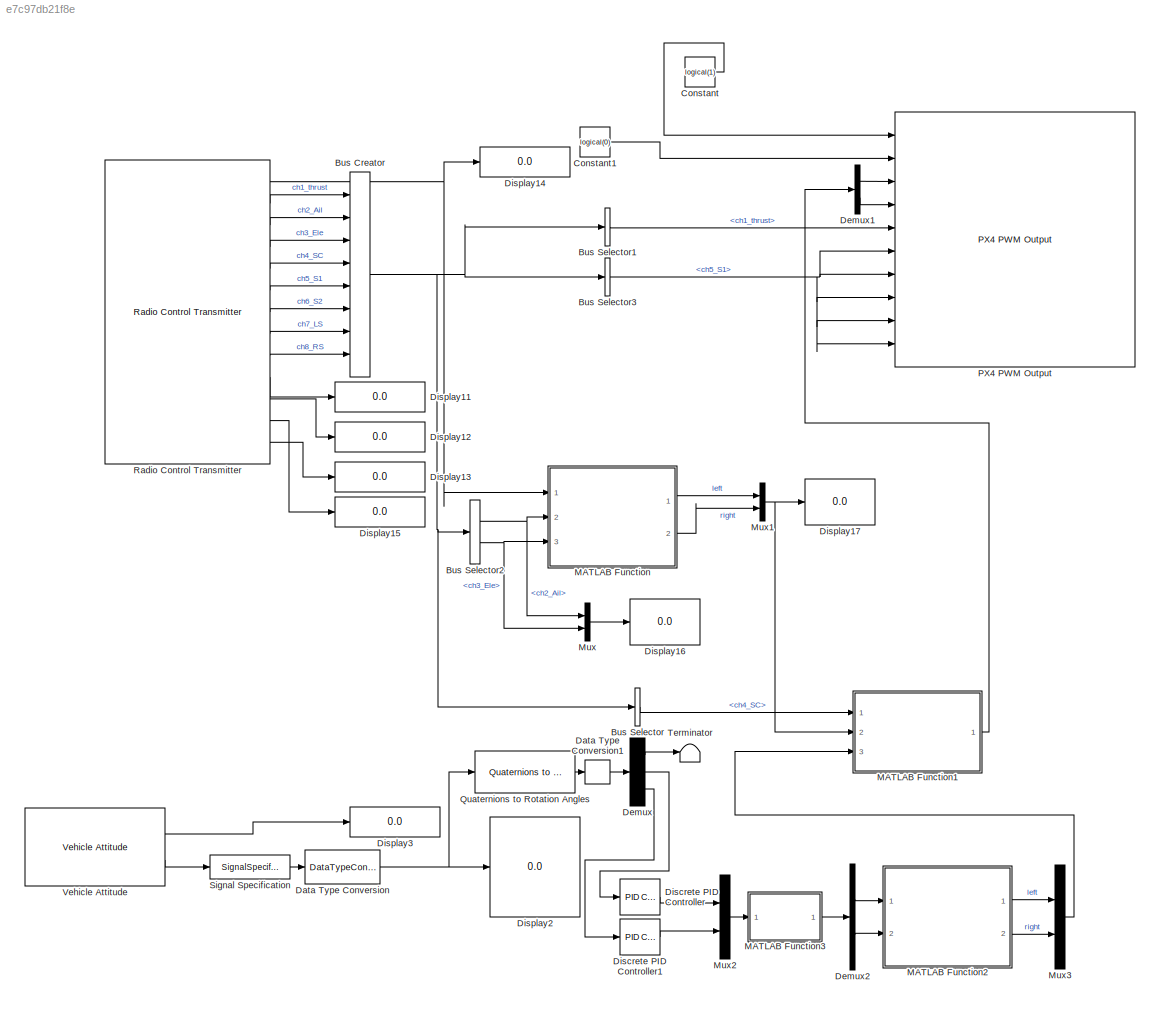
MODEL slx_e7c97db21f8e
KIND model
CONFIG AbsTol = auto
CONFIG EnableMultiTasking = on
CONFIG FixedStep = auto
CONFIG MaxStep = auto
CONFIG MinStep = auto
CONFIG RelTol = 1e-3
CONFIG SampleTimeConstraint = Unconstrained
CONFIG Solver = FixedStepAuto
CONFIG SolverName = FixedStepAuto
CONFIG StartTime = 0.0
CONFIG StopTime = 10.0
BLOCK [BusCreator] Bus Creator
  DisplayOption = bar
  InheritFromInputs = on
  Inputs = ch1_thrust,ch2_Ail,ch3_Ele,ch4_SC,ch5_S1,ch6_S2,ch7_LS,ch8_RS
  Ports = [8, 1]
BLOCK [BusSelector] Bus Selector
  OutputAsBus = off
  OutputSignals = ch4_SC
  Ports = [1, 1]
BLOCK [BusSelector] Bus Selector1
  OutputAsBus = off
  OutputSignals = ch1_thrust
  Ports = [1, 1]
BLOCK [BusSelector] Bus Selector2
  OutputAsBus = off
  OutputSignals = ch2_Ail,ch3_Ele
  Ports = [1, 2]
BLOCK [BusSelector] Bus Selector3
  OutputAsBus = off
  OutputSignals = ch5_S1
  Ports = [1, 1]
BLOCK [Constant] Constant
  Value = logical(1)
BLOCK [Constant] Constant1
  Value = logical(0)
BLOCK [DataTypeConversion] Data Type Conversion
  OutDataTypeStr = double
  RndMeth = Floor
  SaturateOnIntegerOverflow = off
BLOCK [DataTypeConversion] Data Type Conversion1
  OutDataTypeStr = single
  RndMeth = Floor
  SaturateOnIntegerOverflow = off
BLOCK [Demux] Demux
  DisplayOption = bar
  Outputs = 3
  Ports = [1, 3]
BLOCK [Demux] Demux1
  DisplayOption = bar
  Outputs = 2
  Ports = [1, 2]
BLOCK [Demux] Demux2
  DisplayOption = bar
  Outputs = 2
  Ports = [1, 2]
BLOCK [Reference] Discrete PID Controller  REF=simulink/Continuous/PID Controller
  Ports = [1, 1]
  SourceBlock = simulink/Continuous/PID Controller
  SourceProductBaseCode = SL
  SourceProductName = Simulink
  SourceType = PID 1dof
BLOCK [Reference] Discrete PID Controller1  REF=simulink/Continuous/PID Controller
  Ports = [1, 1]
  SourceBlock = simulink/Continuous/PID Controller
  SourceProductBaseCode = SL
  SourceProductName = Simulink
  SourceType = PID 1dof
BLOCK [Display] Display11
  Decimation = 1
  Ports = [1]
BLOCK [Display] Display12
  Decimation = 1
  Ports = [1]
BLOCK [Display] Display13
  Decimation = 1
  Ports = [1]
BLOCK [Display] Display14
  Decimation = 1
  Ports = [1]
BLOCK [Display] Display15
  Decimation = 1
  Ports = [1]
BLOCK [Display] Display16
  Decimation = 1
  Ports = [1]
BLOCK [Display] Display17
  Decimation = 1
  Ports = [1]
BLOCK [Display] Display2
  Decimation = 1
  Ports = [1]
BLOCK [Display] Display3
  Decimation = 1
  Ports = [1]
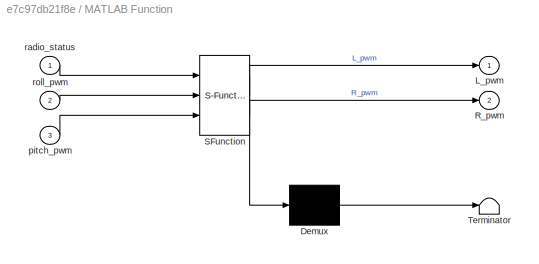
BLOCK [SubSystem] MATLAB Function
  ErrorFcn = Stateflow.Translate.translate
  PermitHierarchicalResolution = ExplicitOnly
  Ports = [3, 2]
  RequestExecContextInheritance = off
  SFBlockType = MATLAB Function
  TreatAsAtomicUnit = on
BLOCK [Demux] MATLAB Function/ Demux 
  Outputs = 1
  Ports = [1, 1]
BLOCK [S-Function] MATLAB Function/ SFunction 
  EnableBusSupport = on
  FunctionName = sf_sfun
  PortCounts = [3 3]
  Ports = [3, 3]
  SFcnIsStateOwnerBlock = off
  SFunctionDeploymentMode = off
  Tag = Stateflow S-Function remoteFly_v1 2
BLOCK [Terminator] MATLAB Function/ Terminator 
BLOCK [Outport] MATLAB Function/L_pwm
  IconDisplay = Port number
BLOCK [Outport] MATLAB Function/R_pwm
  IconDisplay = Port number
  Port = 2
BLOCK [Inport] MATLAB Function/pitch_pwm
  IconDisplay = Port number
  Port = 3
BLOCK [Inport] MATLAB Function/radio_status
  IconDisplay = Port number
BLOCK [Inport] MATLAB Function/roll_pwm
  IconDisplay = Port number
  Port = 2
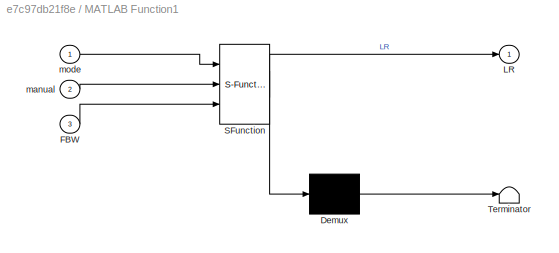
BLOCK [SubSystem] MATLAB Function1
  ErrorFcn = Stateflow.Translate.translate
  PermitHierarchicalResolution = ExplicitOnly
  Ports = [3, 1]
  RequestExecContextInheritance = off
  SFBlockType = MATLAB Function
  TreatAsAtomicUnit = on
BLOCK [Demux] MATLAB Function1/ Demux 
  Outputs = 1
  Ports = [1, 1]
BLOCK [S-Function] MATLAB Function1/ SFunction 
  EnableBusSupport = on
  FunctionName = sf_sfun
  PortCounts = [3 2]
  Ports = [3, 2]
  SFcnIsStateOwnerBlock = off
  SFunctionDeploymentMode = off
  Tag = Stateflow S-Function remoteFly_v1 1
BLOCK [Terminator] MATLAB Function1/ Terminator 
BLOCK [Inport] MATLAB Function1/FBW
  IconDisplay = Port number
  Port = 3
BLOCK [Outport] MATLAB Function1/LR
  IconDisplay = Port number
BLOCK [Inport] MATLAB Function1/manual
  IconDisplay = Port number
  Port = 2
BLOCK [Inport] MATLAB Function1/mode
  IconDisplay = Port number
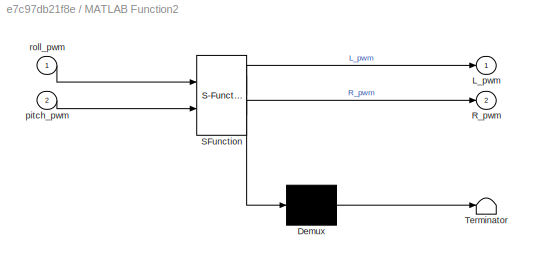
BLOCK [SubSystem] MATLAB Function2
  ErrorFcn = Stateflow.Translate.translate
  PermitHierarchicalResolution = ExplicitOnly
  Ports = [2, 2]
  RequestExecContextInheritance = off
  SFBlockType = MATLAB Function
  TreatAsAtomicUnit = on
BLOCK [Demux] MATLAB Function2/ Demux 
  Outputs = 1
  Ports = [1, 1]
BLOCK [S-Function] MATLAB Function2/ SFunction 
  EnableBusSupport = on
  FunctionName = sf_sfun
  PortCounts = [2 3]
  Ports = [2, 3]
  SFcnIsStateOwnerBlock = off
  SFunctionDeploymentMode = off
  Tag = Stateflow S-Function remoteFly_v1 3
BLOCK [Terminator] MATLAB Function2/ Terminator 
BLOCK [Outport] MATLAB Function2/L_pwm
  IconDisplay = Port number
BLOCK [Outport] MATLAB Function2/R_pwm
  IconDisplay = Port number
  Port = 2
BLOCK [Inport] MATLAB Function2/pitch_pwm
  IconDisplay = Port number
  Port = 2
BLOCK [Inport] MATLAB Function2/roll_pwm
  IconDisplay = Port number
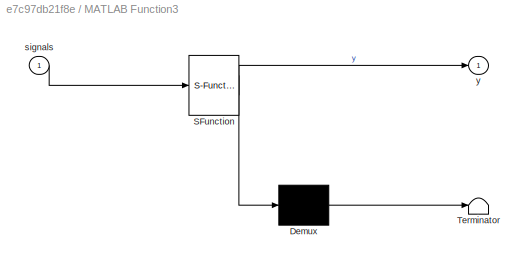
BLOCK [SubSystem] MATLAB Function3
  ErrorFcn = Stateflow.Translate.translate
  PermitHierarchicalResolution = ExplicitOnly
  Ports = [1, 1]
  RequestExecContextInheritance = off
  SFBlockType = MATLAB Function
  TreatAsAtomicUnit = on
BLOCK [Demux] MATLAB Function3/ Demux 
  Outputs = 1
  Ports = [1, 1]
BLOCK [S-Function] MATLAB Function3/ SFunction 
  EnableBusSupport = on
  FunctionName = sf_sfun
  PortCounts = [1 2]
  Ports = [1, 2]
  SFcnIsStateOwnerBlock = off
  SFunctionDeploymentMode = off
  Tag = Stateflow S-Function remoteFly_v1 4
BLOCK [Terminator] MATLAB Function3/ Terminator 
BLOCK [Inport] MATLAB Function3/signals
  IconDisplay = Port number
BLOCK [Outport] MATLAB Function3/y
  IconDisplay = Port number
BLOCK [Mux] Mux
  DisplayOption = bar
  Inputs = 2
  Ports = [2, 1]
BLOCK [Mux] Mux1
  DisplayOption = bar
  Inputs = 2
  Ports = [2, 1]
BLOCK [Mux] Mux2
  DisplayOption = bar
  Inputs = 2
  Ports = [2, 1]
BLOCK [Mux] Mux3
  DisplayOption = bar
  Inputs = 2
  Ports = [2, 1]
BLOCK [Reference] PX4 PWM Output  REF=px4lib/PX4 PWM Output
  Ports = [10]
  SourceBlock = px4lib/PX4 PWM Output
  SourceProductName = Embedded Coder Support Package for PX4 Autopilots
  SourceType = PX4 PWM Output
BLOCK [Reference] Quaternions to Rotation Angles  REF=sharedtransform/Quaternions to Rotation Angles
  AttributesFormatString = Rotation Order: %<rotationOrder>
  Ports = [1, 1]
  SourceBlock = sharedtransform/Quaternions to Rotation Angles
  SourceProductBaseCode = AE
  SourceProductName = Aerospace Blockset
  SourceType = Quat2Ang
BLOCK [Reference] Radio Control Transmitter  REF=px4Sensorslib/Radio Control Transmitter
  Ports = [0, 13]
  SourceBlock = px4Sensorslib/Radio Control Transmitter
  SourceProductName = Embedded Coder Support Package for PX4 Autopilots
  SourceType = PX4 Radio Control Transmitter
BLOCK [SignalSpecification] Signal Specification
  OutDataTypeStr = single
BLOCK [Terminator] Terminator
BLOCK [Reference] Vehicle Attitude  REF=px4Sensorslib/Vehicle Attitude
  Ports = [0, 2]
  SourceBlock = px4Sensorslib/Vehicle Attitude
  SourceProductName = Embedded Coder Support Package for PX4 Autopilots
  SourceType = PX4 Vehicle Attitude
NET Bus Creator:1 -> Bus Selector1:1, Bus Selector2:1, Bus Selector3:1, Bus Selector:1
LINE Bus Selector1:1 -> PX4 PWM Output:5
NET Bus Selector2:1 -> MATLAB Function:2, Mux:1
NET Bus Selector2:2 -> MATLAB Function:3, Mux:2
NET Bus Selector3:1 -> PX4 PWM Output:10, PX4 PWM Output:6, PX4 PWM Output:7, PX4 PWM Output:8, PX4 PWM Output:9
LINE Bus Selector:1 -> MATLAB Function1:1
LINE Constant1:1 -> PX4 PWM Output:2
LINE Constant:1 -> PX4 PWM Output:1
LINE Data Type Conversion1:1 -> Demux:1
NET Data Type Conversion:1 -> Display2:1, Quaternions to Rotation Angles:1
LINE Demux1:1 -> PX4 PWM Output:3
LINE Demux1:2 -> PX4 PWM Output:4
LINE Demux2:1 -> MATLAB Function2:1
LINE Demux2:2 -> MATLAB Function2:2
LINE Demux:1 -> Terminator:1
LINE Demux:2 -> Discrete PID Controller:1
LINE Demux:3 -> Discrete PID Controller1:1
LINE Discrete PID Controller1:1 -> Mux2:2
LINE Discrete PID Controller:1 -> Mux2:1
LINE MATLAB Function1:1 -> Demux1:1
LINE MATLAB Function2:1 -> Mux3:1
LINE MATLAB Function2:2 -> Mux3:2
LINE MATLAB Function3:1 -> Demux2:1
LINE MATLAB Function:1 -> Mux1:1
LINE MATLAB Function:2 -> Mux1:2
NET Mux1:1 -> Display17:1, MATLAB Function1:2
LINE Mux2:1 -> MATLAB Function3:1
LINE Mux3:1 -> MATLAB Function1:3
LINE Mux:1 -> Display16:1
LINE Quaternions to Rotation Angles:1 -> Data Type Conversion1:1
NET Radio Control Transmitter:1 -> Display14:1, MATLAB Function:1
LINE Radio Control Transmitter:10 -> Display11:1
LINE Radio Control Transmitter:11 -> Display12:1
LINE Radio Control Transmitter:12 -> Display15:1
LINE Radio Control Transmitter:13 -> Display13:1
LINE Radio Control Transmitter:2 -> Bus Creator:1
LINE Radio Control Transmitter:3 -> Bus Creator:2
LINE Radio Control Transmitter:4 -> Bus Creator:3
LINE Radio Control Transmitter:5 -> Bus Creator:4
LINE Radio Control Transmitter:6 -> Bus Creator:5
LINE Radio Control Transmitter:7 -> Bus Creator:6
LINE Radio Control Transmitter:8 -> Bus Creator:7
LINE Radio Control Transmitter:9 -> Bus Creator:8
LINE Signal Specification:1 -> Data Type Conversion:1
LINE Vehicle Attitude:1 -> Display3:1
LINE Vehicle Attitude:2 -> Signal Specification:1
note: NET lines group one-source signal fan-out (src -> all destinations, sorted); 1:1 wires keep LINE
CHART MATLAB Function1 states=1 transitions=1
  STATE_LABEL 'eML_blk_kernel()'
  STATE_LABEL "SCRIPT:\nfunction LR = fcn(mode, manual, FBW)\n\nif mode<1400\n    LR = manual;\nelseif mode<1600\n    LR = FBW;\nelse\n    LR = uint16([1500,1500]');\nend"
CHART MATLAB Function states=1 transitions=1
  STATE_LABEL 'eML_blk_kernel()'
  STATE_LABEL 'SCRIPT:\nfunction [L_pwm,R_pwm] = pitch_roll_pwmTranslator(radio_status, roll_pwm,pitch_pwm)\n%{\nFirst subtract center point for PWM\nThen remember servos are mounted in different orientations.\nOn right wing positive -> elevon down.\nOn left wing positive -> elevon up\nFinally add back center point\n\nPitch up -> PWM negative -> correct sign for right, invert for left.\nRoll right -> PWM positive -> inver...<+750ch>'
CHART MATLAB Function2 states=1 transitions=1
  STATE_LABEL 'eML_blk_kernel()'
  STATE_LABEL 'SCRIPT:\nfunction [L_pwm,R_pwm] = pitch_roll_pwmTranslator(roll_pwm,pitch_pwm)\n%{\nFirst subtract center point for PWM\nThen remember servos are mounted in different orientations.\nOn right wing positive -> elevon down.\nOn left wing positive -> elevon up\nFinally add back center point\n\nPitch up -> PWM negative -> correct sign for right, invert for left.\nRoll right -> PWM positive -> invert for left, in...<+563ch>'
CHART MATLAB Function3 states=1 transitions=1
  STATE_LABEL 'eML_blk_kernel()'
  STATE_LABEL 'SCRIPT:\nfunction y = signal2pwm(signals)\n\ny = uint16(zeros(size(signals)));\n\n\n% Range is ~1000-2000, ie +-500, but in is +-1\nsignals = signals.*500;\n% Shift to center PWM\nsignals = signals+1500;\ny = uint16(signals);'
